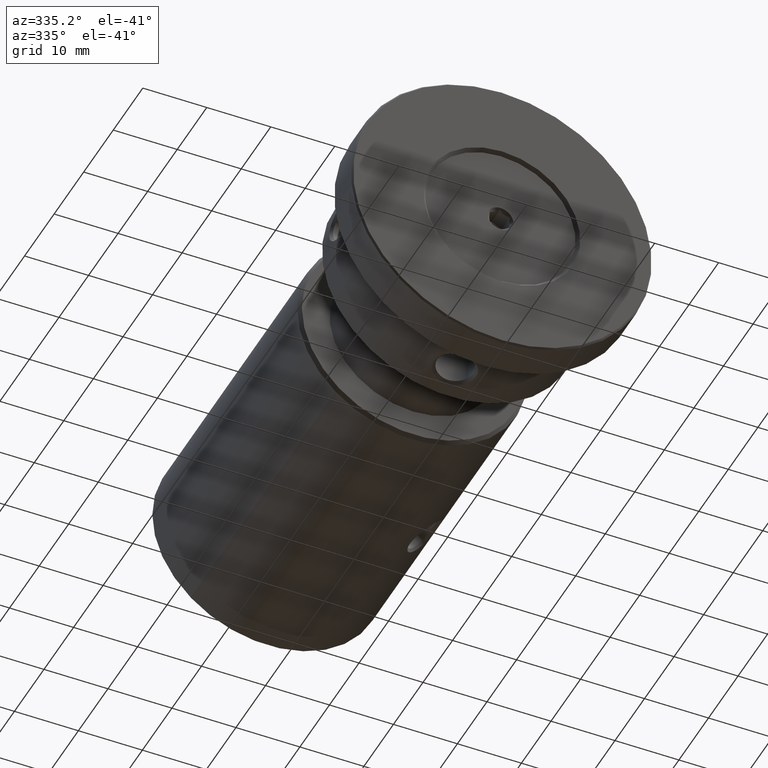
[diagram: clean part render]
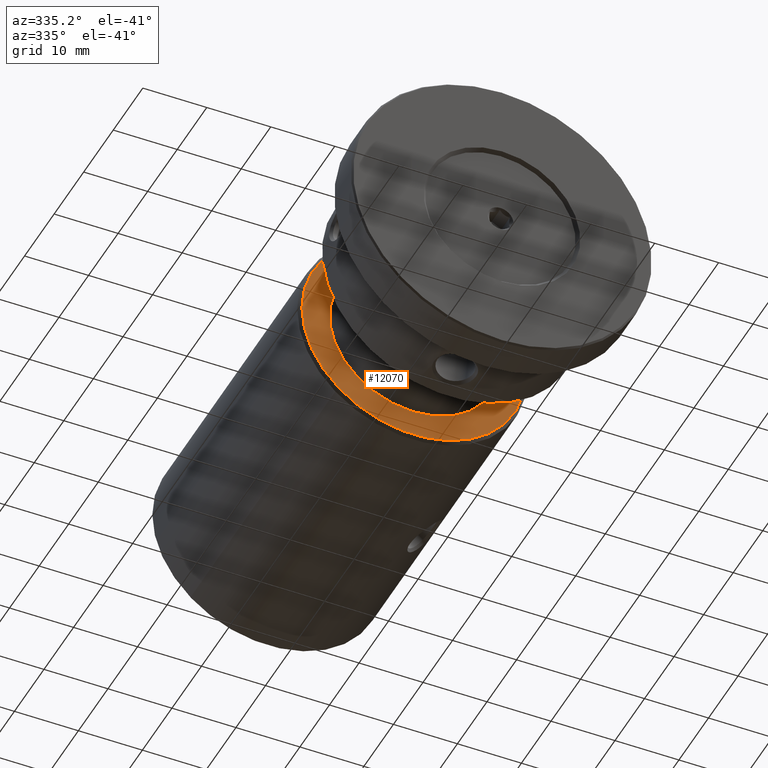
[diagram: same view with one face highlighted and labeled with its STEP entity id]
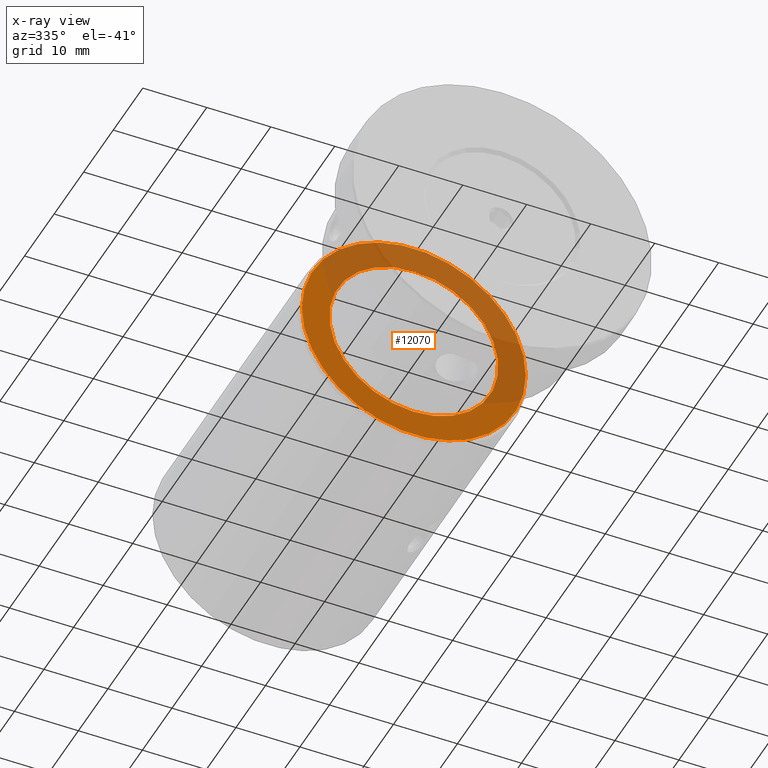
[diagram: x-ray of the same camera — body ghosted, the highlighted face saturated]
A machine part, auxiliary view. The second image highlights one B-rep face of the part: STEP entity #12070.
The next image is the same camera in x-ray: the body ghosted, the highlighted face saturated — about 49% of this face is hidden behind the body in this view.
In plain terms, the highlighted planar face has unit normal (0, 1, 0).
Its self-contained STEP definition (entity closure, byte-faithful):
#129 = DIRECTION ( 'NONE',  ( -0.000000000000000000, -1.000000000000000000, -0.000000000000000000 ) ) ;
#468 = AXIS2_PLACEMENT_3D ( 'NONE', #9976, #1124, #3757 ) ;
#718 = VERTEX_POINT ( 'NONE', #1392 ) ;
#1124 = DIRECTION ( 'NONE',  ( -0.000000000000000000, -1.000000000000000000, -0.000000000000000000 ) ) ;
#1129 = ORIENTED_EDGE ( 'NONE', *, *, #12079, .T. ) ;
#1220 = DIRECTION ( 'NONE',  ( 0.000000000000000000, 0.000000000000000000, 1.000000000000000000 ) ) ;
#1356 = AXIS2_PLACEMENT_3D ( 'NONE', #2773, #9339, #8416 ) ;
#1392 = CARTESIAN_POINT ( 'NONE',  ( 0.000000000000000000, -25.00000000000000000, 17.49999999999998934 ) ) ;
#2773 = CARTESIAN_POINT ( 'NONE',  ( 0.000000000000000000, -25.00000000000000000, 0.000000000000000000 ) ) ;
#2958 = ORIENTED_EDGE ( 'NONE', *, *, #7359, .T. ) ;
#2995 = DIRECTION ( 'NONE',  ( 0.000000000000000000, 0.000000000000000000, 1.000000000000000000 ) ) ;
#3046 = FACE_OUTER_BOUND ( 'NONE', #10724, .T. ) ;
#3294 = AXIS2_PLACEMENT_3D ( 'NONE', #6844, #5865, #1220 ) ;
#3509 = CIRCLE ( 'NONE', #1356, 13.20000000000001528 ) ;
#3571 = EDGE_LOOP ( 'NONE', ( #7184, #1129 ) ) ;
#3757 = DIRECTION ( 'NONE',  ( 0.000000000000000000, 0.000000000000000000, 1.000000000000000000 ) ) ;
#4152 = CARTESIAN_POINT ( 'NONE',  ( 0.000000000000000000, -25.00000000000000000, -13.20000000000001528 ) ) ;
#4630 = VERTEX_POINT ( 'NONE', #8127 ) ;
#4879 = PLANE ( 'NONE',  #8769 ) ;
#5345 = AXIS2_PLACEMENT_3D ( 'NONE', #9497, #129, #2995 ) ;
#5537 = EDGE_CURVE ( 'NONE', #718, #10147, #9465, .T. ) ;
#5865 = DIRECTION ( 'NONE',  ( 0.000000000000000000, 1.000000000000000000, 0.000000000000000000 ) ) ;
#5929 = DIRECTION ( 'NONE',  ( 0.000000000000000000, 1.000000000000000000, 0.000000000000000000 ) ) ;
#6776 = CARTESIAN_POINT ( 'NONE',  ( 0.000000000000000000, -25.00000000000000000, 0.000000000000000000 ) ) ;
#6844 = CARTESIAN_POINT ( 'NONE',  ( 0.000000000000000000, -25.00000000000000000, 0.000000000000000000 ) ) ;
#7184 = ORIENTED_EDGE ( 'NONE', *, *, #9325, .T. ) ;
#7359 = EDGE_CURVE ( 'NONE', #10147, #718, #9852, .T. ) ;
#8127 = CARTESIAN_POINT ( 'NONE',  ( 1.616533774874508176E-15, -25.00000000000000000, 13.20000000000001528 ) ) ;
#8416 = DIRECTION ( 'NONE',  ( 0.000000000000000000, 0.000000000000000000, 1.000000000000000000 ) ) ;
#8769 = AXIS2_PLACEMENT_3D ( 'NONE', #6776, #5929, #10541 ) ;
#9037 = ORIENTED_EDGE ( 'NONE', *, *, #5537, .T. ) ;
#9138 = VERTEX_POINT ( 'NONE', #4152 ) ;
#9207 = CARTESIAN_POINT ( 'NONE',  ( 2.173748068486550852E-15, -25.00000000000000000, -17.49999999999998934 ) ) ;
#9325 = EDGE_CURVE ( 'NONE', #9138, #4630, #3509, .T. ) ;
#9339 = DIRECTION ( 'NONE',  ( 0.000000000000000000, 1.000000000000000000, 0.000000000000000000 ) ) ;
#9465 = CIRCLE ( 'NONE', #468, 17.49999999999998934 ) ;
#9497 = CARTESIAN_POINT ( 'NONE',  ( 0.000000000000000000, -25.00000000000000000, 0.000000000000000000 ) ) ;
#9852 = CIRCLE ( 'NONE', #5345, 17.49999999999998934 ) ;
#9976 = CARTESIAN_POINT ( 'NONE',  ( 0.000000000000000000, -25.00000000000000000, 0.000000000000000000 ) ) ;
#10147 = VERTEX_POINT ( 'NONE', #9207 ) ;
#10340 = CIRCLE ( 'NONE', #3294, 13.20000000000001528 ) ;
#10479 = FACE_BOUND ( 'NONE', #3571, .T. ) ;
#10541 = DIRECTION ( 'NONE',  ( 0.000000000000000000, -0.000000000000000000, 1.000000000000000000 ) ) ;
#10724 = EDGE_LOOP ( 'NONE', ( #9037, #2958 ) ) ;
#12070 = ADVANCED_FACE ( 'NONE', ( #10479, #3046 ), #4879, .F. ) ;
#12079 = EDGE_CURVE ( 'NONE', #4630, #9138, #10340, .T. ) ;